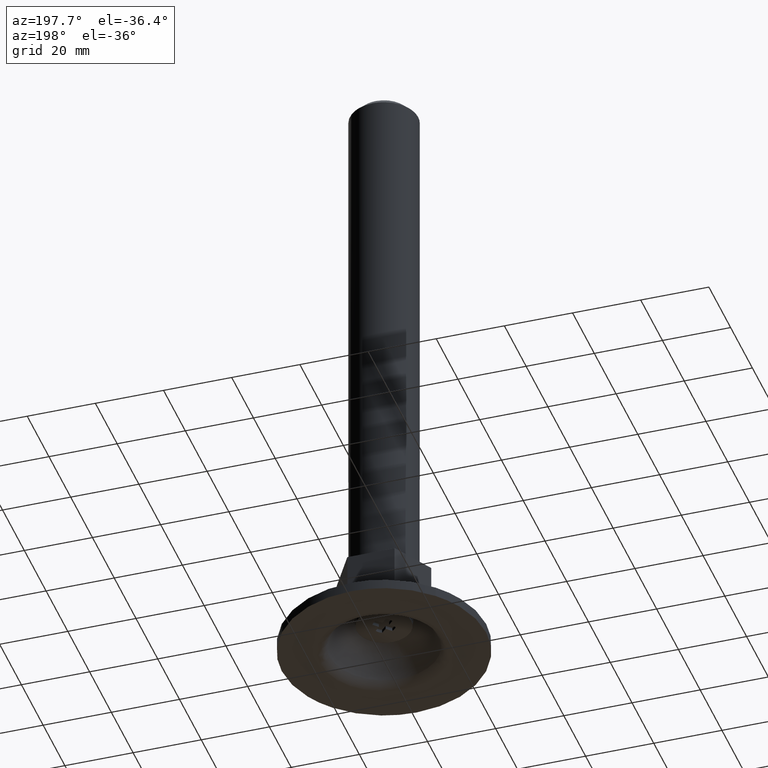
[diagram: clean part render]
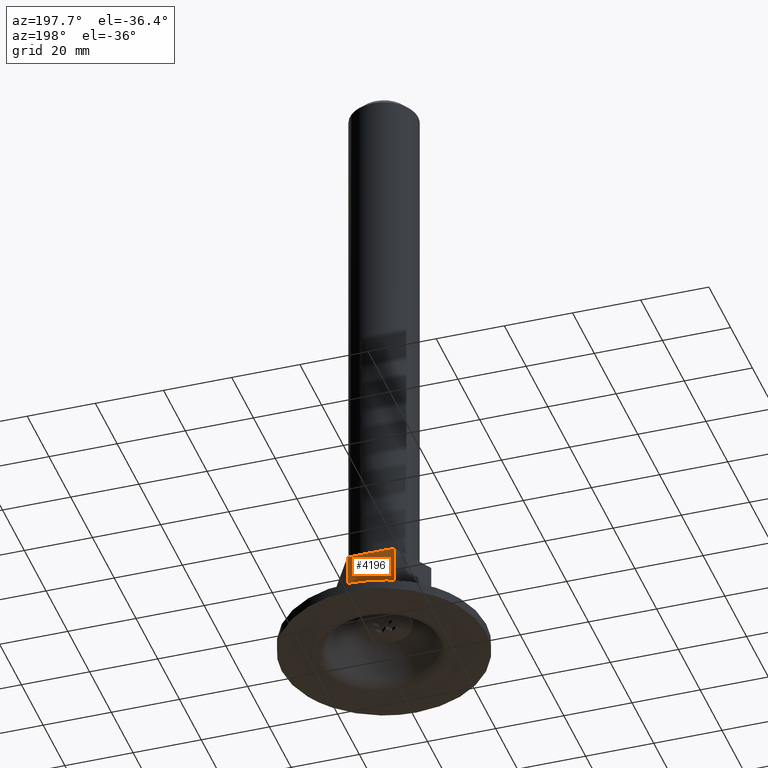
[diagram: same view with one face highlighted and labeled with its STEP entity id]
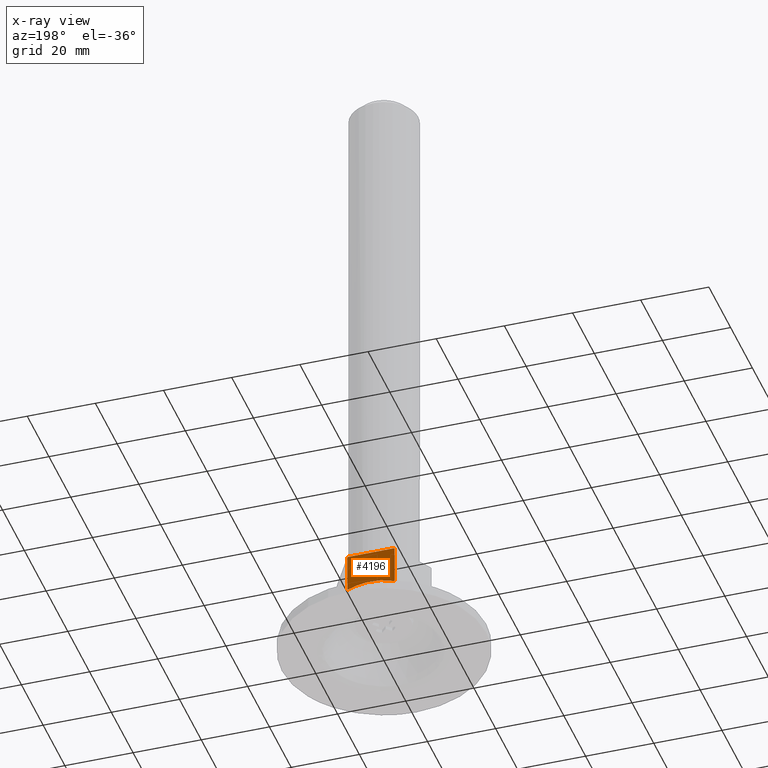
[diagram: x-ray of the same camera — body ghosted, the highlighted face saturated]
A machine part, auxiliary view. The second image highlights one B-rep face of the part: STEP entity #4196.
The next image is the same camera in x-ray: the body ghosted, the highlighted face saturated — about 0% of this face is hidden behind the body in this view.
In plain terms, the highlighted face is a freeform B-spline surface patch.
Its self-contained STEP definition (entity closure, byte-faithful):
#3967=CARTESIAN_POINT('',(-6.928203230275360,12.0,14.570158679988200));
#3968=VERTEX_POINT('',#3967);
#3969=CARTESIAN_POINT('',(6.928203230275470,12.0,14.570158679988140));
#3970=VERTEX_POINT('',#3969);
#3971=CARTESIAN_POINT('',(-6.928203230275360,12.0,14.570158679988200));
#3972=CARTESIAN_POINT('',(-5.838039152776561,12.000000000000011,15.040317671182590));
#3973=CARTESIAN_POINT('',(-3.703872107225098,12.0,15.712590989558899));
#3974=CARTESIAN_POINT('',(-0.151467276359495,12.0,16.121279248392849));
#3975=CARTESIAN_POINT('',(3.419330445963153,12.000000000000020,15.802451779000140));
#3976=CARTESIAN_POINT('',(5.838036738529191,11.999999999999980,15.040277585058149));
#3977=CARTESIAN_POINT('',(6.928203230275470,12.0,14.570158679988140));
#3978=B_SPLINE_CURVE_WITH_KNOTS('',3,(#3971,#3972,#3973,#3974,#3975,#3976,#3977),.UNSPECIFIED.,.F.,.U.,(4,1,1,1,4),(0.000000013733304,3.561667563204297,6.678125447546107,10.684998389700841,14.246664480829310),.UNSPECIFIED.);
#3979=EDGE_CURVE('',#3968,#3970,#3978,.T.);
#4048=CARTESIAN_POINT('',(6.928203230275470,12.0,26.0));
#4049=VERTEX_POINT('',#4048);
#4050=CARTESIAN_POINT('',(-6.928203230275360,12.0,26.0));
#4051=VERTEX_POINT('',#4050);
#4052=CARTESIAN_POINT('',(6.928203230275470,12.0,26.0));
#4053=CARTESIAN_POINT('',(-6.928203230275360,12.0,26.0));
#4054=QUASI_UNIFORM_CURVE('',1,(#4052,#4053),.UNSPECIFIED.,.F.,.U.);
#4055=EDGE_CURVE('',#4049,#4051,#4054,.T.);
#4107=CARTESIAN_POINT('',(6.928203230275470,12.0,26.0));
#4108=CARTESIAN_POINT('',(6.928203230275470,12.0,14.570158679988140));
#4109=QUASI_UNIFORM_CURVE('',1,(#4107,#4108),.UNSPECIFIED.,.F.,.U.);
#4110=EDGE_CURVE('',#4049,#3970,#4109,.T.);
#4177=CARTESIAN_POINT('',(-6.928203230275360,12.0,26.0));
#4178=CARTESIAN_POINT('',(-6.928203230275360,12.0,14.570158679988200));
#4179=QUASI_UNIFORM_CURVE('',1,(#4177,#4178),.UNSPECIFIED.,.F.,.U.);
#4180=EDGE_CURVE('',#4051,#3968,#4179,.T.);
#4185=CARTESIAN_POINT('',(-7.620330706123472,12.0,26.570920551781349));
#4186=CARTESIAN_POINT('',(-7.620330706123472,12.0,13.999237821634560));
#4187=CARTESIAN_POINT('',(7.620331077781365,12.0,26.570920551781349));
#4188=CARTESIAN_POINT('',(7.620331077781365,12.0,13.999237821634560));
#4189=B_SPLINE_SURFACE_WITH_KNOTS('',1,1,((#4185,#4187),(#4186,#4188)),.UNSPECIFIED.,.F.,.F.,.U.,(2,2),(2,2),(0.0,12.571682730146780),(0.0,15.240661783904841),.UNSPECIFIED.);
#4190=ORIENTED_EDGE('',*,*,#3979,.F.);
#4191=ORIENTED_EDGE('',*,*,#4180,.F.);
#4192=ORIENTED_EDGE('',*,*,#4055,.F.);
#4193=ORIENTED_EDGE('',*,*,#4110,.T.);
#4194=EDGE_LOOP('',(#4190,#4191,#4192,#4193));
#4195=FACE_OUTER_BOUND('',#4194,.T.);
#4196=ADVANCED_FACE('',(#4195),#4189,.F.);